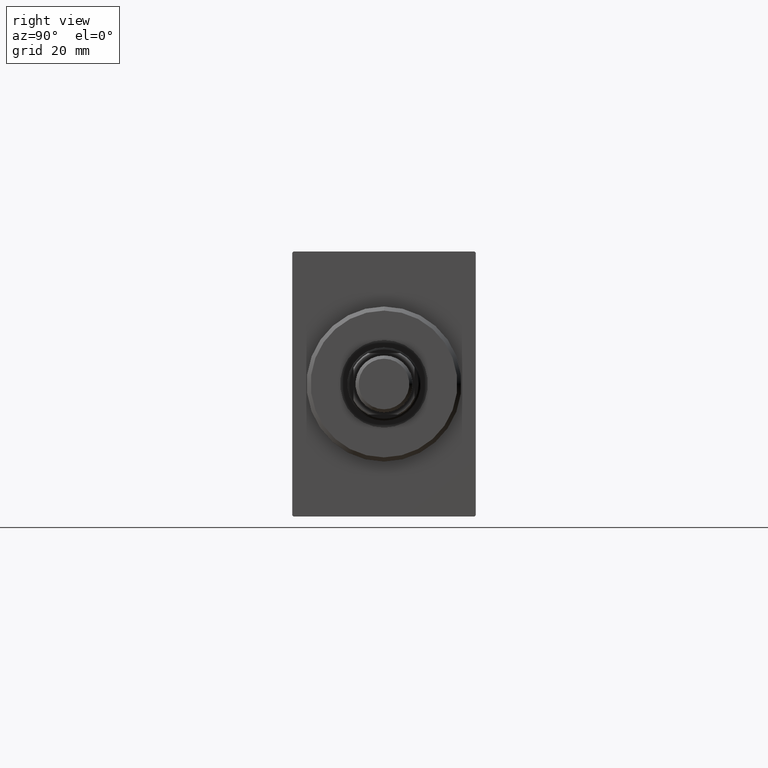
[diagram: clean part render]
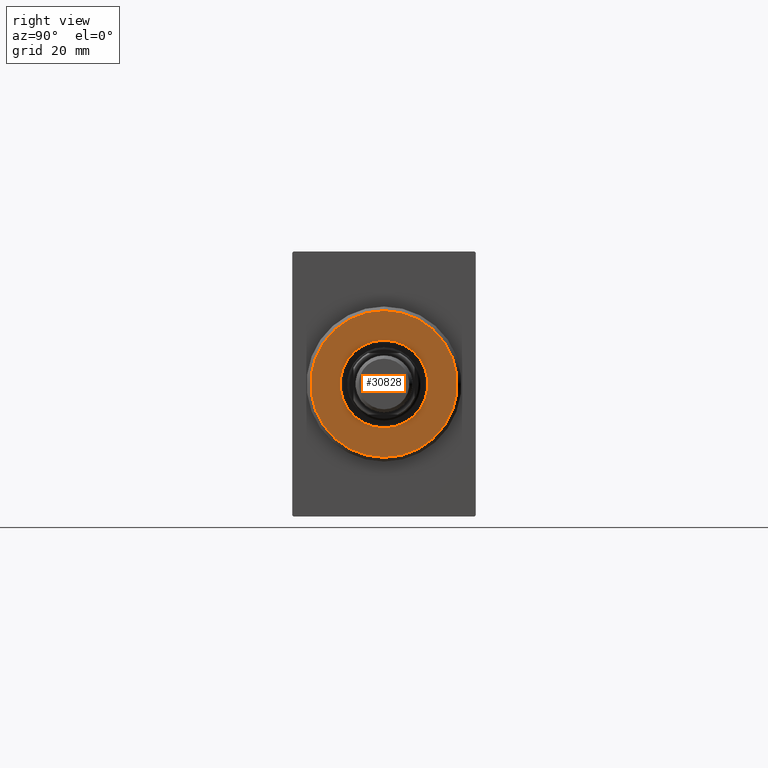
[diagram: same view with one face highlighted and labeled with its STEP entity id]
A machine part, right view. The second image highlights one B-rep face of the part: STEP entity #30828.
In plain terms, the highlighted planar face has unit normal (1, 0, 0).
Its self-contained STEP definition (entity closure, byte-faithful):
#963 = DIRECTION ( 'NONE',  ( 0.000000000000000000, 0.000000000000000000, -1.000000000000000000 ) ) ;
#2388 = AXIS2_PLACEMENT_3D ( 'NONE', #9001, #25873, #8576 ) ;
#2921 = VERTEX_POINT ( 'NONE', #25584 ) ;
#3369 = DIRECTION ( 'NONE',  ( -1.000000000000000000, 0.000000000000000000, -0.000000000000000000 ) ) ;
#5866 = CARTESIAN_POINT ( 'NONE',  ( 3.000000000000000000, 0.000000000000000000, 0.000000000000000000 ) ) ;
#6734 = VERTEX_POINT ( 'NONE', #13991 ) ;
#8168 = AXIS2_PLACEMENT_3D ( 'NONE', #42171, #16883, #16456 ) ;
#8576 = DIRECTION ( 'NONE',  ( 0.000000000000000000, 0.000000000000000000, -1.000000000000000000 ) ) ;
#9001 = CARTESIAN_POINT ( 'NONE',  ( 3.000000000000000000, 0.000000000000000000, 0.000000000000000000 ) ) ;
#9272 = CIRCLE ( 'NONE', #39343, 10.75000000000000000 ) ;
#9495 = VERTEX_POINT ( 'NONE', #17203 ) ;
#11504 = AXIS2_PLACEMENT_3D ( 'NONE', #21364, #20696, #963 ) ;
#12206 = CARTESIAN_POINT ( 'NONE',  ( 3.000000000000000000, 1.316495309083404223E-15, -10.75000000000000000 ) ) ;
#12695 = VERTEX_POINT ( 'NONE', #12206 ) ;
#13991 = CARTESIAN_POINT ( 'NONE',  ( 3.000000000000000000, 0.000000000000000000, 17.99999999999999645 ) ) ;
#14952 = EDGE_LOOP ( 'NONE', ( #21224, #35336 ) ) ;
#16456 = DIRECTION ( 'NONE',  ( 0.000000000000000000, 0.000000000000000000, -1.000000000000000000 ) ) ;
#16883 = DIRECTION ( 'NONE',  ( -1.000000000000000000, 0.000000000000000000, -0.000000000000000000 ) ) ;
#17203 = CARTESIAN_POINT ( 'NONE',  ( 3.000000000000000000, 0.000000000000000000, 10.75000000000000000 ) ) ;
#20696 = DIRECTION ( 'NONE',  ( 1.000000000000000000, -0.000000000000000000, 0.000000000000000000 ) ) ;
#21224 = ORIENTED_EDGE ( 'NONE', *, *, #42912, .T. ) ;
#21364 = CARTESIAN_POINT ( 'NONE',  ( 3.000000000000000000, 0.000000000000000000, 0.000000000000000000 ) ) ;
#22021 = CIRCLE ( 'NONE', #2388, 17.99999999999999645 ) ;
#22135 = EDGE_CURVE ( 'NONE', #12695, #9495, #9272, .T. ) ;
#24650 = FACE_OUTER_BOUND ( 'NONE', #25869, .T. ) ;
#24980 = AXIS2_PLACEMENT_3D ( 'NONE', #5866, #32612, #31985 ) ;
#25584 = CARTESIAN_POINT ( 'NONE',  ( 3.000000000000000000, 2.265596578422603002E-15, -17.99999999999999645 ) ) ;
#25869 = EDGE_LOOP ( 'NONE', ( #41998, #38681 ) ) ;
#25873 = DIRECTION ( 'NONE',  ( 1.000000000000000000, -0.000000000000000000, 0.000000000000000000 ) ) ;
#29246 = DIRECTION ( 'NONE',  ( 0.000000000000000000, 0.000000000000000000, -1.000000000000000000 ) ) ;
#30828 = ADVANCED_FACE ( 'NONE', ( #24650, #37769 ), #31003, .T. ) ;
#31003 = PLANE ( 'NONE',  #11504 ) ;
#31175 = EDGE_CURVE ( 'NONE', #6734, #2921, #22021, .T. ) ;
#31985 = DIRECTION ( 'NONE',  ( 0.000000000000000000, 0.000000000000000000, -1.000000000000000000 ) ) ;
#32612 = DIRECTION ( 'NONE',  ( 1.000000000000000000, -0.000000000000000000, 0.000000000000000000 ) ) ;
#33367 = CIRCLE ( 'NONE', #24980, 17.99999999999999645 ) ;
#35336 = ORIENTED_EDGE ( 'NONE', *, *, #22135, .T. ) ;
#37769 = FACE_BOUND ( 'NONE', #14952, .T. ) ;
#38681 = ORIENTED_EDGE ( 'NONE', *, *, #42727, .T. ) ;
#39343 = AXIS2_PLACEMENT_3D ( 'NONE', #39951, #3369, #29246 ) ;
#39951 = CARTESIAN_POINT ( 'NONE',  ( 3.000000000000000000, 0.000000000000000000, 0.000000000000000000 ) ) ;
#41998 = ORIENTED_EDGE ( 'NONE', *, *, #31175, .T. ) ;
#42171 = CARTESIAN_POINT ( 'NONE',  ( 3.000000000000000000, 0.000000000000000000, 0.000000000000000000 ) ) ;
#42434 = CIRCLE ( 'NONE', #8168, 10.75000000000000000 ) ;
#42727 = EDGE_CURVE ( 'NONE', #2921, #6734, #33367, .T. ) ;
#42912 = EDGE_CURVE ( 'NONE', #9495, #12695, #42434, .T. ) ;